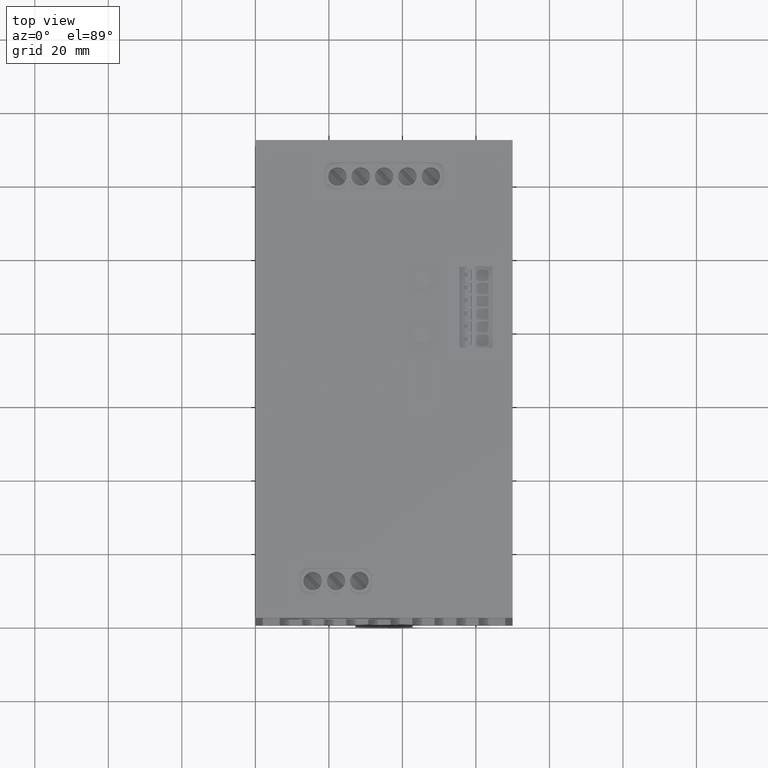
[diagram: clean part render]
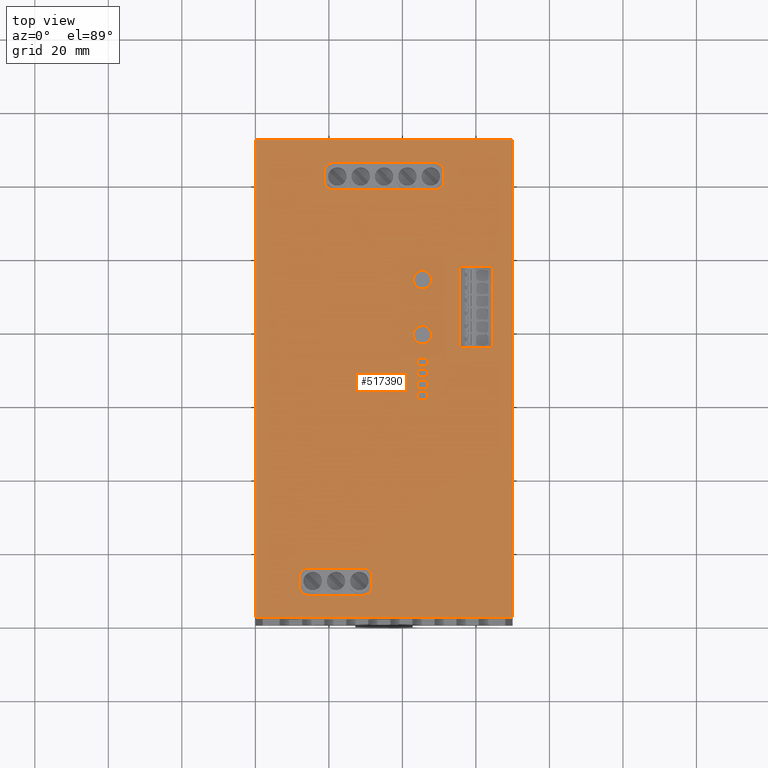
[diagram: same view with one face highlighted and labeled with its STEP entity id]
A machine part, top view. The second image highlights one B-rep face of the part: STEP entity #517390.
In plain terms, the highlighted planar face has unit normal (0, 0, 1).
Its self-contained STEP definition (entity closure, byte-faithful):
#1800=CARTESIAN_POINT('',(44.,122.349999999992,60.6468498908015));
#1810=VERTEX_POINT('',#1800);
#1980=CARTESIAN_POINT('',(47.,122.349999999992,60.6468498908015));
#1990=VERTEX_POINT('',#1980);
#2020=CARTESIAN_POINT('',(20.06,122.349999999992,60.6468498908015));
#2030=DIRECTION('',(1.,0.,0.));
#2040=VECTOR('',#2030,1.);
#2050=LINE('',#2020,#2040);
#2060=EDGE_CURVE('',#1810,#1990,#2050,.T.);
#3120=CARTESIAN_POINT('',(47.,122.349999999992,64.6468498908015));
#3130=VERTEX_POINT('',#3120);
#3300=CARTESIAN_POINT('',(44.,122.349999999992,64.6468498908015));
#3310=VERTEX_POINT('',#3300);
#3340=CARTESIAN_POINT('',(20.06,122.349999999992,64.6468498908015));
#3350=DIRECTION('',(-1.,0.,0.));
#3360=VECTOR('',#3350,1.);
#3370=LINE('',#3340,#3360);
#3380=EDGE_CURVE('',#3130,#3310,#3370,.T.);
#5760=CARTESIAN_POINT('',(47.,122.349999999992,66.6468498908015));
#5770=VERTEX_POINT('',#5760);
#5890=CARTESIAN_POINT('',(47.,122.349999999992,-0.0531501091985831));
#5900=DIRECTION('',(0.,0.,-1.));
#5910=VECTOR('',#5900,1.);
#5920=LINE('',#5890,#5910);
#5930=EDGE_CURVE('',#5770,#3130,#5920,.T.);
#6140=CARTESIAN_POINT('',(44.,122.349999999992,58.6468498908015));
#6150=VERTEX_POINT('',#6140);
#6200=CARTESIAN_POINT('',(44.,122.349999999992,-0.0531501091985831));
#6210=DIRECTION('',(0.,0.,1.));
#6220=VECTOR('',#6210,1.);
#6230=LINE('',#6200,#6220);
#6240=EDGE_CURVE('',#6150,#1810,#6230,.T.);
#6450=CARTESIAN_POINT('',(44.,122.349999999992,66.6468498908015));
#6460=VERTEX_POINT('',#6450);
#6580=CARTESIAN_POINT('',(20.06,122.349999999992,66.6468498908015));
#6590=DIRECTION('',(1.,0.,0.));
#6600=VECTOR('',#6590,1.);
#6610=LINE('',#6580,#6600);
#6620=EDGE_CURVE('',#6460,#5770,#6610,.T.);
#7510=CARTESIAN_POINT('',(70.,122.349999999992,129.146849890801));
#7520=VERTEX_POINT('',#7510);
#7550=CARTESIAN_POINT('',(70.,122.349999999992,0.));
#7560=DIRECTION('',(0.,0.,-1.));
#7570=VECTOR('',#7560,1.);
#7580=LINE('',#7550,#7570);
#7590=CARTESIAN_POINT('',(70.,122.349999999992,-0.853150109198594));
#7600=VERTEX_POINT('',#7590);
#7610=EDGE_CURVE('',#7520,#7600,#7580,.T.);
#7980=CARTESIAN_POINT('',(47.,122.349999999992,58.6468498908015));
#7990=VERTEX_POINT('',#7980);
#8020=CARTESIAN_POINT('',(47.,122.349999999992,-0.0531501091985831));
#8030=DIRECTION('',(0.,0.,-1.));
#8040=VECTOR('',#8030,1.);
#8050=LINE('',#8020,#8040);
#8060=EDGE_CURVE('',#1990,#7990,#8050,.T.);
#10010=CARTESIAN_POINT('',(47.,122.349999999992,63.6468498908015));
#10020=VERTEX_POINT('',#10010);
#10190=CARTESIAN_POINT('',(47.,122.349999999992,61.6468498908015));
#10200=VERTEX_POINT('',#10190);
#10230=CARTESIAN_POINT('',(47.,122.349999999992,-0.0531501091985831));
#10240=DIRECTION('',(0.,0.,-1.));
#10250=VECTOR('',#10240,1.);
#10260=LINE('',#10230,#10250);
#10270=EDGE_CURVE('',#10020,#10200,#10260,.T.);
#15070=CARTESIAN_POINT('',(31.7345989800037,122.349999999992,
120.493314781603));
#15080=VERTEX_POINT('',#15070);
#15110=CARTESIAN_POINT('',(29.2345989800037,122.349999999992,
120.493314781603));
#15120=DIRECTION('',(0.,-1.,0.));
#15130=DIRECTION('',(-1.,0.,0.));
#15140=AXIS2_PLACEMENT_3D('',#15110,#15120,#15130);
#15150=CIRCLE('',#15140,2.5);
#15160=CARTESIAN_POINT('',(29.2345989800037,122.349999999992,
122.993314781603));
#15170=VERTEX_POINT('',#15160);
#15180=EDGE_CURVE('',#15080,#15170,#15150,.T.);
#15730=CARTESIAN_POINT('',(48.,122.349999999992,52.1468498908015));
#15740=VERTEX_POINT('',#15730);
#15820=CARTESIAN_POINT('',(43.,122.349999999992,52.1468498908015));
#15830=VERTEX_POINT('',#15820);
#15860=CARTESIAN_POINT('',(45.5,122.349999999992,52.1468498908015));
#15870=DIRECTION('',(0.,-1.,0.));
#15880=DIRECTION('',(1.,0.,0.));
#15890=AXIS2_PLACEMENT_3D('',#15860,#15870,#15880);
#15900=CIRCLE('',#15890,2.50000000000001);
#15910=EDGE_CURVE('',#15830,#15740,#15900,.T.);
#16810=CARTESIAN_POINT('',(44.,122.349999999992,61.6468498908015));
#16820=VERTEX_POINT('',#16810);
#16900=CARTESIAN_POINT('',(44.,122.349999999992,63.6468498908015));
#16910=VERTEX_POINT('',#16900);
#16940=CARTESIAN_POINT('',(44.,122.349999999992,-0.0531501091985831));
#16950=DIRECTION('',(0.,0.,1.));
#16960=VECTOR('',#16950,1.);
#16970=LINE('',#16940,#16960);
#16980=EDGE_CURVE('',#16820,#16910,#16970,.T.);
#17180=CARTESIAN_POINT('',(20.06,122.349999999992,63.6468498908015));
#17190=DIRECTION('',(1.,0.,0.));
#17200=VECTOR('',#17190,1.);
#17210=LINE('',#17180,#17200);
#17220=EDGE_CURVE('',#16910,#10020,#17210,.T.);
#17420=CARTESIAN_POINT('',(20.06,122.349999999992,61.6468498908015));
#17430=DIRECTION('',(-1.,0.,0.));
#17440=VECTOR('',#17430,1.);
#17450=LINE('',#17420,#17440);
#17460=EDGE_CURVE('',#10200,#16820,#17450,.T.);
#35280=CARTESIAN_POINT('',(44.,122.349999999992,-0.0531501091985831));
#35290=DIRECTION('',(0.,0.,1.));
#35300=VECTOR('',#35290,1.);
#35310=LINE('',#35280,#35300);
#35320=EDGE_CURVE('',#3310,#6460,#35310,.T.);
#35520=CARTESIAN_POINT('',(20.06,122.349999999992,58.6468498908015));
#35530=DIRECTION('',(-1.,0.,0.));
#35540=VECTOR('',#35530,1.);
#35550=LINE('',#35520,#35540);
#35560=EDGE_CURVE('',#7990,#6150,#35550,.T.);
#35770=CARTESIAN_POINT('',(43.,122.349999999992,37.1468498908015));
#35780=VERTEX_POINT('',#35770);
#35830=CARTESIAN_POINT('',(45.5,122.349999999992,37.1468498908015));
#35840=DIRECTION('',(0.,-1.,0.));
#35850=DIRECTION('',(1.,0.,0.));
#35860=AXIS2_PLACEMENT_3D('',#35830,#35840,#35850);
#35870=CIRCLE('',#35860,2.5);
#35880=CARTESIAN_POINT('',(48.,122.349999999992,37.1468498908015));
#35890=VERTEX_POINT('',#35880);
#35900=EDGE_CURVE('',#35780,#35890,#35870,.T.);
#36440=CARTESIAN_POINT('',(44.,122.349999999992,67.6468498908015));
#36450=VERTEX_POINT('',#36440);
#36620=CARTESIAN_POINT('',(44.,122.349999999992,69.6468498908015));
#36630=VERTEX_POINT('',#36620);
#36660=CARTESIAN_POINT('',(44.,122.349999999992,-0.0531501091985831));
#36670=DIRECTION('',(0.,0.,1.));
#36680=VECTOR('',#36670,1.);
#36690=LINE('',#36660,#36680);
#36700=EDGE_CURVE('',#36450,#36630,#36690,.T.);
#36910=CARTESIAN_POINT('',(47.,122.349999999992,67.6468498908015));
#36920=VERTEX_POINT('',#36910);
#37040=CARTESIAN_POINT('',(20.06,122.349999999992,67.6468498908015));
#37050=DIRECTION('',(-1.,0.,0.));
#37060=VECTOR('',#37050,1.);
#37070=LINE('',#37040,#37060);
#37080=EDGE_CURVE('',#36920,#36450,#37070,.T.);
#37290=CARTESIAN_POINT('',(47.,122.349999999992,69.6468498908015));
#37300=VERTEX_POINT('',#37290);
#37420=CARTESIAN_POINT('',(47.,122.349999999992,-0.0531501091985831));
#37430=DIRECTION('',(0.,0.,-1.));
#37440=VECTOR('',#37430,1.);
#37450=LINE('',#37420,#37440);
#37460=EDGE_CURVE('',#37300,#36920,#37450,.T.);
#37850=CARTESIAN_POINT('',(20.06,122.349999999992,69.6468498908015));
#37860=DIRECTION('',(1.,0.,0.));
#37870=VECTOR('',#37860,1.);
#37880=LINE('',#37850,#37870);
#37890=EDGE_CURVE('',#36630,#37300,#37880,.T.);
#41400=CARTESIAN_POINT('',(55.56,122.349999999992,33.6468498908014));
#41410=VERTEX_POINT('',#41400);
#41440=CARTESIAN_POINT('',(20.06,122.349999999992,33.6468498908014));
#41450=DIRECTION('',(-1.,0.,0.));
#41460=VECTOR('',#41450,1.);
#41470=LINE('',#41440,#41460);
#41480=CARTESIAN_POINT('',(64.56,122.349999999992,33.6468498908014));
#41490=VERTEX_POINT('',#41480);
#41500=EDGE_CURVE('',#41490,#41410,#41470,.T.);
#42330=CARTESIAN_POINT('',(64.56,122.349999999992,55.6468498908014));
#42340=VERTEX_POINT('',#42330);
#42370=CARTESIAN_POINT('',(20.06,122.349999999992,55.6468498908014));
#42380=DIRECTION('',(1.,0.,0.));
#42390=VECTOR('',#42380,1.);
#42400=LINE('',#42370,#42390);
#42410=CARTESIAN_POINT('',(55.56,122.349999999992,55.6468498908014));
#42420=VERTEX_POINT('',#42410);
#42430=EDGE_CURVE('',#42420,#42340,#42400,.T.);
#64370=CARTESIAN_POINT('',(55.56,122.349999999992,-0.0531501091985831));
#64380=DIRECTION('',(0.,0.,1.));
#64390=VECTOR('',#64380,1.);
#64400=LINE('',#64370,#64390);
#64410=EDGE_CURVE('',#41410,#42420,#64400,.T.);
#64620=CARTESIAN_POINT('',(64.56,122.349999999992,-0.0531501091985831));
#64630=DIRECTION('',(0.,0.,-1.));
#64640=VECTOR('',#64630,1.);
#64650=LINE('',#64620,#64640);
#64660=EDGE_CURVE('',#42340,#41490,#64650,.T.);
#84060=CARTESIAN_POINT('',(0.,122.349999999992,-0.853150109198594));
#84070=VERTEX_POINT('',#84060);
#84100=CARTESIAN_POINT('',(0.,122.349999999992,0.));
#84110=DIRECTION('',(0.,0.,-1.));
#84120=VECTOR('',#84110,1.);
#84130=LINE('',#84100,#84120);
#84140=CARTESIAN_POINT('',(0.,122.349999999992,129.146849890801));
#84150=VERTEX_POINT('',#84140);
#84160=EDGE_CURVE('',#84150,#84070,#84130,.T.);
#86030=CARTESIAN_POINT('',(29.2345989800037,122.349999999992,
115.593314781603));
#86040=VERTEX_POINT('',#86030);
#86070=CARTESIAN_POINT('',(29.2345989800037,122.349999999992,
118.093314781603));
#86080=DIRECTION('',(0.,-1.,0.));
#86090=DIRECTION('',(-1.,0.,0.));
#86100=AXIS2_PLACEMENT_3D('',#86070,#86080,#86090);
#86110=CIRCLE('',#86100,2.5);
#86120=CARTESIAN_POINT('',(31.7345989800037,122.349999999992,
118.093314781603));
#86130=VERTEX_POINT('',#86120);
#86140=EDGE_CURVE('',#86040,#86130,#86110,.T.);
#87040=CARTESIAN_POINT('',(14.4335354708757,122.349999999992,
115.593314781603));
#87050=VERTEX_POINT('',#87040);
#87080=CARTESIAN_POINT('',(0.,122.349999999992,115.593314781603));
#87090=DIRECTION('',(-1.,0.,0.));
#87100=VECTOR('',#87090,1.);
#87110=LINE('',#87080,#87100);
#87120=EDGE_CURVE('',#86040,#87050,#87110,.T.);
#107490=CARTESIAN_POINT('',(0.,122.349999999992,122.993314781603));
#107500=DIRECTION('',(1.,0.,0.));
#107510=VECTOR('',#107500,1.);
#107520=LINE('',#107490,#107510);
#107530=CARTESIAN_POINT('',(14.4335354708757,122.349999999992,
122.993314781603));
#107540=VERTEX_POINT('',#107530);
#107550=EDGE_CURVE('',#107540,#15170,#107520,.T.);
#107810=CARTESIAN_POINT('',(14.4335354708757,122.349999999992,
120.493314781603));
#107820=DIRECTION('',(0.,1.,0.));
#107830=DIRECTION('',(-1.,0.,0.));
#107840=AXIS2_PLACEMENT_3D('',#107810,#107820,#107830);
#107850=CIRCLE('',#107840,2.50000000000003);
#107860=CARTESIAN_POINT('',(11.9335354708757,122.349999999992,
120.493314781603));
#107870=VERTEX_POINT('',#107860);
#107880=EDGE_CURVE('',#107870,#107540,#107850,.T.);
#108180=CARTESIAN_POINT('',(11.9335354708757,122.349999999992,
118.093314781603));
#108190=VERTEX_POINT('',#108180);
#108220=CARTESIAN_POINT('',(14.4335354708757,122.349999999992,
118.093314781603));
#108230=DIRECTION('',(0.,-1.,0.));
#108240=DIRECTION('',(1.,0.,0.));
#108250=AXIS2_PLACEMENT_3D('',#108220,#108230,#108240);
#108260=CIRCLE('',#108250,2.50000000000007);
#108270=EDGE_CURVE('',#108190,#87050,#108260,.T.);
#108450=CARTESIAN_POINT('',(11.9335354708757,122.349999999992,
-0.0531501091985831));
#108460=DIRECTION('',(0.,0.,1.));
#108470=VECTOR('',#108460,1.);
#108480=LINE('',#108450,#108470);
#108490=EDGE_CURVE('',#108190,#107870,#108480,.T.);
#108680=CARTESIAN_POINT('',(31.734598980004,122.349999999992,0.));
#108690=DIRECTION('',(1.73472347597681E-15,0.,-1.));
#108700=VECTOR('',#108690,1.);
#108710=LINE('',#108680,#108700);
#108720=EDGE_CURVE('',#15080,#86130,#108710,.T.);
#187750=CARTESIAN_POINT('',(0.,122.349999999992,129.146849890801));
#187760=DIRECTION('',(-1.,0.,0.));
#187770=VECTOR('',#187760,1.);
#187780=LINE('',#187750,#187770);
#187790=EDGE_CURVE('',#7520,#84150,#187780,.T.);
#511500=CARTESIAN_POINT('',(21.2914645291246,122.349999999992,5.300385))
;
#511510=VERTEX_POINT('',#511500);
#511540=CARTESIAN_POINT('',(56.9250000000003,122.349999999992,
5.30038500000001));
#511550=DIRECTION('',(-1.,0.,0.));
#511560=VECTOR('',#511550,1.);
#511570=LINE('',#511540,#511560);
#511580=CARTESIAN_POINT('',(48.8414645291243,122.349999999992,
5.30038499999993));
#511590=VERTEX_POINT('',#511580);
#511600=EDGE_CURVE('',#511590,#511510,#511570,.T.);
#512480=CARTESIAN_POINT('',(48.8414645291243,122.349999999992,
7.80038499999996));
#512490=DIRECTION('',(0.,1.,0.));
#512500=DIRECTION('',(1.,0.,0.));
#512510=AXIS2_PLACEMENT_3D('',#512480,#512490,#512500);
#512520=CIRCLE('',#512510,2.50000000000003);
#512530=CARTESIAN_POINT('',(51.3414645291243,122.349999999992,
7.80038500000001));
#512540=VERTEX_POINT('',#512530);
#512550=EDGE_CURVE('',#512540,#511590,#512520,.T.);
#512880=CARTESIAN_POINT('',(51.3414645291243,122.349999999992,
128.346849890801));
#512890=DIRECTION('',(0.,0.,-1.));
#512900=VECTOR('',#512890,1.);
#512910=LINE('',#512880,#512900);
#512920=CARTESIAN_POINT('',(51.3414645291244,122.349999999992,10.200385)
);
#512930=VERTEX_POINT('',#512920);
#512940=EDGE_CURVE('',#512930,#512540,#512910,.T.);
#513290=CARTESIAN_POINT('',(48.8414645291243,122.349999999992,
12.7003850000001));
#513300=VERTEX_POINT('',#513290);
#513430=CARTESIAN_POINT('',(48.8414645291243,122.349999999992,10.200385)
);
#513440=DIRECTION('',(0.,-1.,0.));
#513450=DIRECTION('',(-1.,0.,0.));
#513460=AXIS2_PLACEMENT_3D('',#513430,#513440,#513450);
#513470=CIRCLE('',#513460,2.50000000000007);
#513480=EDGE_CURVE('',#512930,#513300,#513470,.T.);
#516350=CARTESIAN_POINT('',(25.,122.349999999992,64.1468498908014));
#516360=DIRECTION('',(-0.,1.,0.));
#516370=DIRECTION('',(1.,0.,0.));
#516380=AXIS2_PLACEMENT_3D('',#516350,#516360,#516370);
#516390=PLANE('',#516380);
#516400=CARTESIAN_POINT('',(21.2914645291246,122.349999999992,
7.80038500000002));
#516410=DIRECTION('',(0.,1.,0.));
#516420=DIRECTION('',(1.,0.,0.));
#516430=AXIS2_PLACEMENT_3D('',#516400,#516410,#516420);
#516440=CIRCLE('',#516430,2.50000000000002);
#516450=CARTESIAN_POINT('',(18.7914645291246,122.349999999992,7.800385))
;
#516460=VERTEX_POINT('',#516450);
#516470=EDGE_CURVE('',#511510,#516460,#516440,.T.);
#516480=ORIENTED_EDGE('',*,*,#516470,.F.);
#516490=CARTESIAN_POINT('',(18.7914645291246,122.349999999992,
128.346849890801));
#516500=DIRECTION('',(0.,0.,1.));
#516510=VECTOR('',#516500,1.);
#516520=LINE('',#516490,#516510);
#516530=CARTESIAN_POINT('',(18.7914645291246,122.349999999992,10.200385)
);
#516540=VERTEX_POINT('',#516530);
#516550=EDGE_CURVE('',#516460,#516540,#516520,.T.);
#516560=ORIENTED_EDGE('',*,*,#516550,.F.);
#516570=CARTESIAN_POINT('',(21.2914645291247,122.349999999992,10.200385)
);
#516580=DIRECTION('',(0.,1.,0.));
#516590=DIRECTION('',(1.,0.,0.));
#516600=AXIS2_PLACEMENT_3D('',#516570,#516580,#516590);
#516610=CIRCLE('',#516600,2.50000000000012);
#516620=CARTESIAN_POINT('',(21.2914645291246,122.349999999992,12.700385)
);
#516630=VERTEX_POINT('',#516620);
#516640=EDGE_CURVE('',#516540,#516630,#516610,.T.);
#516650=ORIENTED_EDGE('',*,*,#516640,.F.);
#516660=CARTESIAN_POINT('',(63.275,122.349999999992,12.700385));
#516670=DIRECTION('',(1.,0.,0.));
#516680=VECTOR('',#516670,1.);
#516690=LINE('',#516660,#516680);
#516700=EDGE_CURVE('',#516630,#513300,#516690,.T.);
#516710=ORIENTED_EDGE('',*,*,#516700,.F.);
#516720=ORIENTED_EDGE('',*,*,#513480,.T.);
#516730=ORIENTED_EDGE('',*,*,#512940,.F.);
#516740=ORIENTED_EDGE('',*,*,#512550,.F.);
#516750=ORIENTED_EDGE('',*,*,#511600,.F.);
#516760=EDGE_LOOP('',(#516750,#516740,#516730,#516720,#516710,#516650,
#516560,#516480));
#516770=FACE_BOUND('',#516760,.T.);
#516780=EDGE_CURVE('',#15740,#15830,#15900,.T.);
#516790=ORIENTED_EDGE('',*,*,#516780,.T.);
#516800=ORIENTED_EDGE('',*,*,#15910,.T.);
#516810=EDGE_LOOP('',(#516800,#516790));
#516820=FACE_BOUND('',#516810,.T.);
#516830=ORIENTED_EDGE('',*,*,#2060,.F.);
#516840=ORIENTED_EDGE('',*,*,#8060,.F.);
#516850=ORIENTED_EDGE('',*,*,#35560,.F.);
#516860=ORIENTED_EDGE('',*,*,#6240,.F.);
#516870=EDGE_LOOP('',(#516860,#516850,#516840,#516830));
#516880=FACE_BOUND('',#516870,.T.);
#516890=ORIENTED_EDGE('',*,*,#17220,.F.);
#516900=ORIENTED_EDGE('',*,*,#10270,.F.);
#516910=ORIENTED_EDGE('',*,*,#17460,.F.);
#516920=ORIENTED_EDGE('',*,*,#16980,.F.);
#516930=EDGE_LOOP('',(#516920,#516910,#516900,#516890));
#516940=FACE_BOUND('',#516930,.T.);
#516950=EDGE_CURVE('',#35890,#35780,#35870,.T.);
#516960=ORIENTED_EDGE('',*,*,#516950,.T.);
#516970=ORIENTED_EDGE('',*,*,#35900,.T.);
#516980=EDGE_LOOP('',(#516970,#516960));
#516990=FACE_BOUND('',#516980,.T.);
#517000=ORIENTED_EDGE('',*,*,#37460,.F.);
#517010=ORIENTED_EDGE('',*,*,#37080,.F.);
#517020=ORIENTED_EDGE('',*,*,#36700,.F.);
#517030=ORIENTED_EDGE('',*,*,#37890,.F.);
#517040=EDGE_LOOP('',(#517030,#517020,#517010,#517000));
#517050=FACE_BOUND('',#517040,.T.);
#517060=ORIENTED_EDGE('',*,*,#15180,.T.);
#517070=ORIENTED_EDGE('',*,*,#108720,.F.);
#517080=ORIENTED_EDGE('',*,*,#86140,.T.);
#517090=ORIENTED_EDGE('',*,*,#87120,.F.);
#517100=ORIENTED_EDGE('',*,*,#108270,.T.);
#517110=ORIENTED_EDGE('',*,*,#108490,.F.);
#517120=ORIENTED_EDGE('',*,*,#107880,.F.);
#517130=ORIENTED_EDGE('',*,*,#107550,.F.);
#517140=EDGE_LOOP('',(#517130,#517120,#517110,#517100,#517090,#517080,
#517070,#517060));
#517150=FACE_BOUND('',#517140,.T.);
#517160=ORIENTED_EDGE('',*,*,#3380,.F.);
#517170=ORIENTED_EDGE('',*,*,#35320,.F.);
#517180=ORIENTED_EDGE('',*,*,#6620,.F.);
#517190=ORIENTED_EDGE('',*,*,#5930,.F.);
#517200=EDGE_LOOP('',(#517190,#517180,#517170,#517160));
#517210=FACE_BOUND('',#517200,.T.);
#517220=ORIENTED_EDGE('',*,*,#64660,.F.);
#517230=ORIENTED_EDGE('',*,*,#41500,.F.);
#517240=ORIENTED_EDGE('',*,*,#64410,.F.);
#517250=ORIENTED_EDGE('',*,*,#42430,.F.);
#517260=EDGE_LOOP('',(#517250,#517240,#517230,#517220));
#517270=FACE_BOUND('',#517260,.T.);
#517280=ORIENTED_EDGE('',*,*,#7610,.T.);
#517290=ORIENTED_EDGE('',*,*,#187790,.F.);
#517300=ORIENTED_EDGE('',*,*,#84160,.F.);
#517310=CARTESIAN_POINT('',(0.,122.349999999992,-0.853150109198594));
#517320=DIRECTION('',(1.,0.,0.));
#517330=VECTOR('',#517320,1.);
#517340=LINE('',#517310,#517330);
#517350=EDGE_CURVE('',#84070,#7600,#517340,.T.);
#517360=ORIENTED_EDGE('',*,*,#517350,.F.);
#517370=EDGE_LOOP('',(#517360,#517300,#517290,#517280));
#517380=FACE_OUTER_BOUND('',#517370,.T.);
#517390=ADVANCED_FACE('',(#516770,#516820,#516880,#516940,#516990,
#517050,#517150,#517210,#517270,#517380),#516390,.T.);